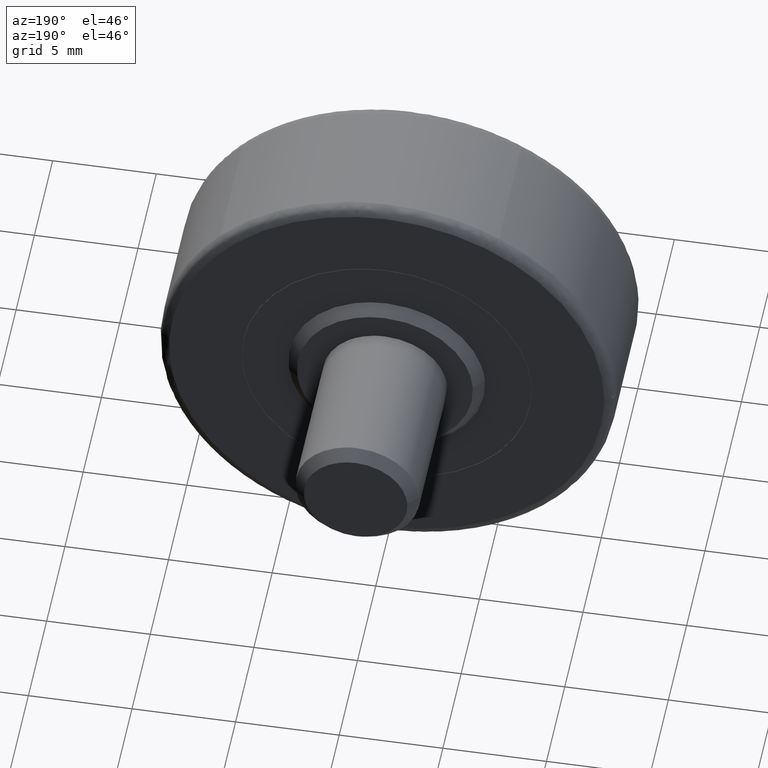
[diagram: clean part render]
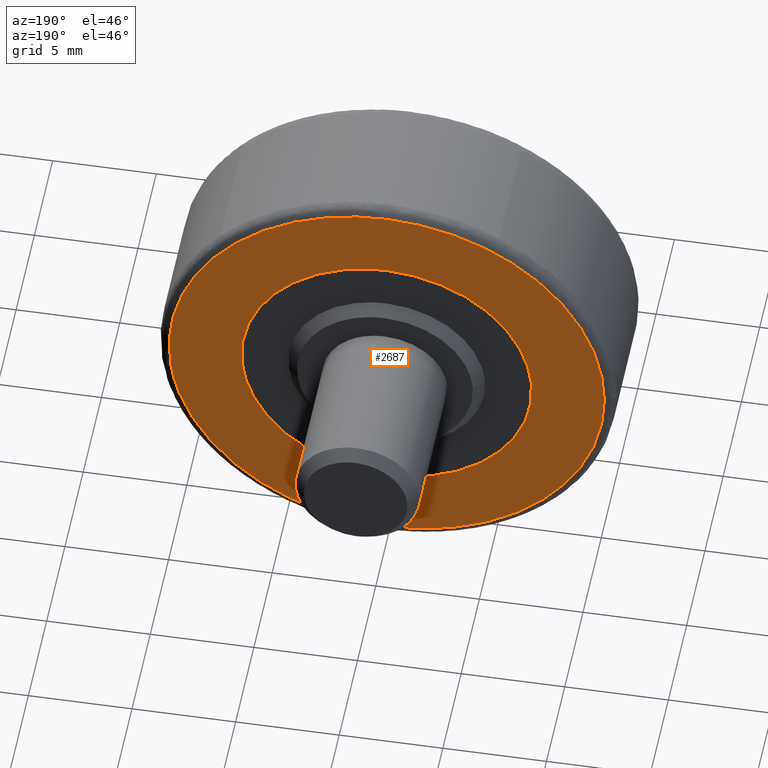
[diagram: same view with one face highlighted and labeled with its STEP entity id]
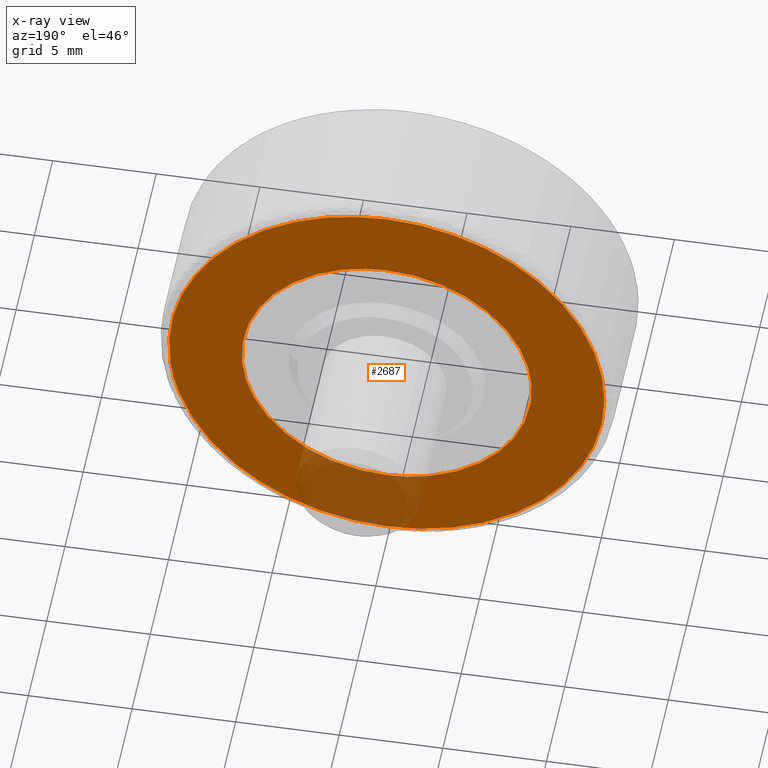
[diagram: x-ray of the same camera — body ghosted, the highlighted face saturated]
A machine part, auxiliary view. The second image highlights one B-rep face of the part: STEP entity #2687.
The next image is the same camera in x-ray: the body ghosted, the highlighted face saturated — about 11% of this face is hidden behind the body in this view.
In plain terms, the highlighted face is a freeform B-spline surface patch.
Its self-contained STEP definition (entity closure, byte-faithful):
#593=CARTESIAN_POINT('',(-6.978422040008933,7.0,0.549204726342610));
#594=VERTEX_POINT('',#593);
#600=CARTESIAN_POINT('',(0.0,7.0,7.0));
#601=VERTEX_POINT('',#600);
#602=CARTESIAN_POINT('',(0.0,7.0,7.0));
#603=CARTESIAN_POINT('',(-6.470741760339803,7.0,7.0));
#604=CARTESIAN_POINT('',(-6.978422040008933,7.0,0.549204726342610));
#612=(BOUNDED_CURVE()B_SPLINE_CURVE(2,(#602,#603,#604),.UNSPECIFIED.,.F.,.U.)B_SPLINE_CURVE_WITH_KNOTS((3,3),(0.0,0.236331520335521),.UNSPECIFIED.)CURVE()GEOMETRIC_REPRESENTATION_ITEM()RATIONAL_B_SPLINE_CURVE((1.0,0.723120401207409,0.969723814675155))REPRESENTATION_ITEM(''));
#613=EDGE_CURVE('',#601,#594,#612,.T.);
#615=CARTESIAN_POINT('',(6.978422040008933,7.0,-0.549204726342610));
#616=VERTEX_POINT('',#615);
#617=CARTESIAN_POINT('',(6.978422040008933,7.0,-0.549204726342610));
#618=CARTESIAN_POINT('',(6.999999999999999,6.999999999999999,-0.275026256425536));
#619=CARTESIAN_POINT('',(7.0,7.0,0.0));
#620=CARTESIAN_POINT('',(6.999999999999999,6.999999999999999,6.999999999999999));
#621=CARTESIAN_POINT('',(0.0,7.0,7.0));
#629=(BOUNDED_CURVE()B_SPLINE_CURVE(2,(#617,#618,#619,#620,#621),.UNSPECIFIED.,.F.,.U.)B_SPLINE_CURVE_WITH_KNOTS((3,2,3),(0.736331520335521,0.750000000000000,1.0),.UNSPECIFIED.)CURVE()GEOMETRIC_REPRESENTATION_ITEM()RATIONAL_B_SPLINE_CURVE((0.969723814675155,0.983986379979138,1.0,0.707106781186547,1.0))REPRESENTATION_ITEM(''));
#630=EDGE_CURVE('',#616,#601,#629,.T.);
#706=CARTESIAN_POINT('',(0.0,7.0,-7.0));
#707=VERTEX_POINT('',#706);
#708=CARTESIAN_POINT('',(0.0,7.0,-7.0));
#709=CARTESIAN_POINT('',(6.470741760339802,6.999999999999999,-6.999999999999999));
#710=CARTESIAN_POINT('',(6.978422040008933,7.0,-0.549204726342610));
#718=(BOUNDED_CURVE()B_SPLINE_CURVE(2,(#708,#709,#710),.UNSPECIFIED.,.F.,.U.)B_SPLINE_CURVE_WITH_KNOTS((3,3),(0.500000000000000,0.736331520335521),.UNSPECIFIED.)CURVE()GEOMETRIC_REPRESENTATION_ITEM()RATIONAL_B_SPLINE_CURVE((1.0,0.723120401207409,0.969723814675155))REPRESENTATION_ITEM(''));
#719=EDGE_CURVE('',#707,#616,#718,.T.);
#721=CARTESIAN_POINT('',(-6.978422040008933,7.0,0.549204726342610));
#722=CARTESIAN_POINT('',(-7.0,7.0,0.275026256425535));
#723=CARTESIAN_POINT('',(-7.0,7.0,0.0));
#724=CARTESIAN_POINT('',(-6.999999999999999,6.999999999999999,-6.999999999999999));
#725=CARTESIAN_POINT('',(0.0,7.0,-7.0));
#733=(BOUNDED_CURVE()B_SPLINE_CURVE(2,(#721,#722,#723,#724,#725),.UNSPECIFIED.,.F.,.U.)B_SPLINE_CURVE_WITH_KNOTS((3,2,3),(0.236331520335521,0.250000000000000,0.500000000000000),.UNSPECIFIED.)CURVE()GEOMETRIC_REPRESENTATION_ITEM()RATIONAL_B_SPLINE_CURVE((0.969723814675155,0.983986379979138,1.0,0.707106781186547,1.0))REPRESENTATION_ITEM(''));
#734=EDGE_CURVE('',#594,#707,#733,.T.);
#1723=CARTESIAN_POINT('',(10.429772207844030,7.0,-1.212374408015375));
#1724=VERTEX_POINT('',#1723);
#1738=CARTESIAN_POINT('',(0.0,7.0,10.500000000000000));
#1739=VERTEX_POINT('',#1738);
#1740=CARTESIAN_POINT('',(10.429772207844032,7.0,-1.212374408015376));
#1741=CARTESIAN_POINT('',(10.500000000000000,7.0,-0.608221205538947));
#1742=CARTESIAN_POINT('',(10.500000000000000,7.0,-2.492082E-016));
#1743=CARTESIAN_POINT('',(10.500000000000000,6.999999999999999,10.500000000000000));
#1744=CARTESIAN_POINT('',(0.0,7.0,10.500000000000000));
#1752=(BOUNDED_CURVE()B_SPLINE_CURVE(2,(#1740,#1741,#1742,#1743,#1744),.UNSPECIFIED.,.F.,.U.)B_SPLINE_CURVE_WITH_KNOTS((3,2,3),(0.229999999999639,0.250000000000000,0.500000000000000),.UNSPECIFIED.)CURVE()GEOMETRIC_REPRESENTATION_ITEM()RATIONAL_B_SPLINE_CURVE((0.956886118189950,0.976568542494501,1.0,0.707106781186547,1.0))REPRESENTATION_ITEM(''));
#1753=EDGE_CURVE('',#1724,#1739,#1752,.T.);
#1755=CARTESIAN_POINT('',(-10.500000000086059,7.0,3.854320E-016));
#1756=VERTEX_POINT('',#1755);
#1757=CARTESIAN_POINT('',(0.0,7.0,10.500000000000000));
#1758=CARTESIAN_POINT('',(-10.499999999999948,6.999999999999999,10.500000000000000));
#1759=CARTESIAN_POINT('',(-10.500000000086061,7.0,3.854320E-016));
#1767=(BOUNDED_CURVE()B_SPLINE_CURVE(2,(#1757,#1758,#1759),.UNSPECIFIED.,.F.,.U.)B_SPLINE_CURVE_WITH_KNOTS((3,3),(0.500000000000000,0.749999999999999),.UNSPECIFIED.)CURVE()GEOMETRIC_REPRESENTATION_ITEM()RATIONAL_B_SPLINE_CURVE((1.0,0.707106781186548,0.999999999999998))REPRESENTATION_ITEM(''));
#1768=EDGE_CURVE('',#1739,#1756,#1767,.T.);
#1814=CARTESIAN_POINT('',(0.0,7.0,-10.500000000000000));
#1815=VERTEX_POINT('',#1814);
#1816=CARTESIAN_POINT('',(-10.500000000086059,7.0,3.854320E-016));
#1817=CARTESIAN_POINT('',(-10.500000000000000,6.999999999999999,-10.500000000000000));
#1818=CARTESIAN_POINT('',(0.0,7.0,-10.500000000000000));
#1826=(BOUNDED_CURVE()B_SPLINE_CURVE(2,(#1816,#1817,#1818),.UNSPECIFIED.,.F.,.U.)B_SPLINE_CURVE_WITH_KNOTS((3,3),(0.750000000000000,1.0),.UNSPECIFIED.)CURVE()GEOMETRIC_REPRESENTATION_ITEM()RATIONAL_B_SPLINE_CURVE((1.0,0.707106781186547,1.0))REPRESENTATION_ITEM(''));
#1827=EDGE_CURVE('',#1756,#1815,#1826,.T.);
#1829=CARTESIAN_POINT('',(0.0,7.0,-10.500000000000000));
#1830=CARTESIAN_POINT('',(9.350162858662833,6.999999999999998,-10.499999999999998));
#1831=CARTESIAN_POINT('',(10.429772207844032,7.000000000000001,-1.212374408015376));
#1839=(BOUNDED_CURVE()B_SPLINE_CURVE(2,(#1829,#1830,#1831),.UNSPECIFIED.,.F.,.U.)B_SPLINE_CURVE_WITH_KNOTS((3,3),(0.0,0.229999999999639),.UNSPECIFIED.)CURVE()GEOMETRIC_REPRESENTATION_ITEM()RATIONAL_B_SPLINE_CURVE((1.0,0.730538238692046,0.956886118189950))REPRESENTATION_ITEM(''));
#1840=EDGE_CURVE('',#1815,#1724,#1839,.T.);
#2670=CARTESIAN_POINT('',(-11.548947128171090,7.0,11.548949959297930));
#2671=CARTESIAN_POINT('',(-11.548947128171090,7.0,-11.548950522561819));
#2672=CARTESIAN_POINT('',(11.548891009984461,7.0,11.548949959297930));
#2673=CARTESIAN_POINT('',(11.548891009984461,7.0,-11.548950522561819));
#2674=B_SPLINE_SURFACE_WITH_KNOTS('',1,1,((#2670,#2672),(#2671,#2673)),.UNSPECIFIED.,.F.,.F.,.U.,(2,2),(2,2),(0.0,23.097900481859750),(0.0,23.097838138155549),.UNSPECIFIED.);
#2675=ORIENTED_EDGE('',*,*,#1827,.F.);
#2676=ORIENTED_EDGE('',*,*,#1768,.F.);
#2677=ORIENTED_EDGE('',*,*,#1753,.F.);
#2678=ORIENTED_EDGE('',*,*,#1840,.F.);
#2679=EDGE_LOOP('',(#2675,#2676,#2677,#2678));
#2680=FACE_OUTER_BOUND('',#2679,.T.);
#2681=ORIENTED_EDGE('',*,*,#719,.T.);
#2682=ORIENTED_EDGE('',*,*,#630,.T.);
#2683=ORIENTED_EDGE('',*,*,#613,.T.);
#2684=ORIENTED_EDGE('',*,*,#734,.T.);
#2685=EDGE_LOOP('',(#2681,#2682,#2683,#2684));
#2686=FACE_BOUND('',#2685,.T.);
#2687=ADVANCED_FACE('',(#2680,#2686),#2674,.F.);